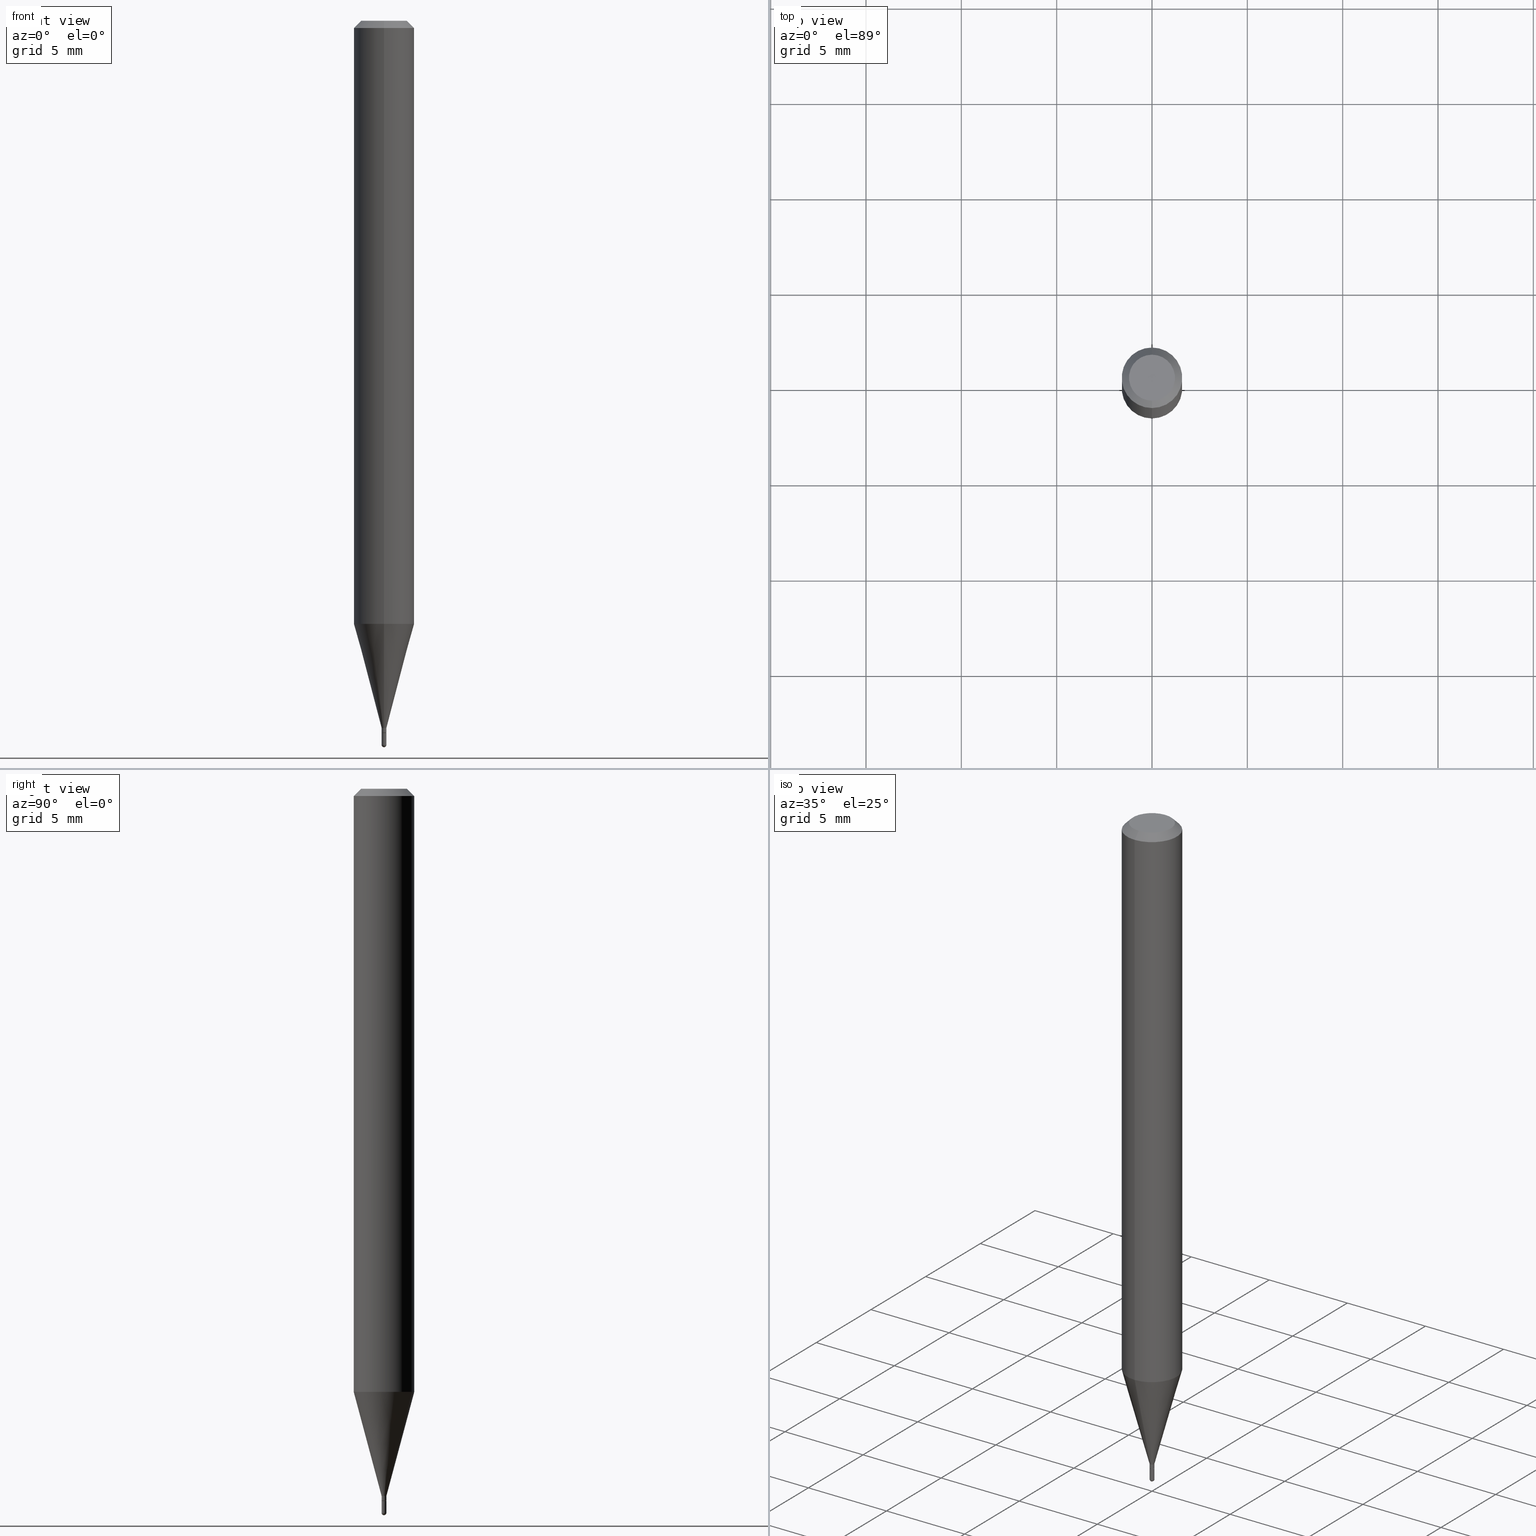
[diagram: canonical four-view strip — front | top / right | iso, engineering-drawing reading convention]
A machine part, canonical four-view strip (front | top / right | iso — engineering-drawing reading convention). The complete STEP part file that produces these views, byte-faithful:
ISO-10303-21;
HEADER;
FILE_DESCRIPTION (( 'STEP AP203' ),
    '1' );
FILE_NAME ('03145.STEP',
    '2024-03-08T18:20:06',
    ( '' ),
    ( '' ),
    'SwSTEP 2.0',
    'SolidWorks 2023',
    '' );
FILE_SCHEMA (( 'CONFIG_CONTROL_DESIGN' ));
ENDSEC;

DATA;
#1 = DIRECTION ( 'NONE',  ( -2.445665953977767409E-29, 3.491199011983142468E-15, 1.000000000000000000 ) ) ;
#2 = DIRECTION ( 'NONE',  ( -2.445665953977767409E-29, 3.491199011983142468E-15, 1.000000000000000000 ) ) ;
#3 = DIRECTION ( 'NONE',  ( -2.445665953977767409E-29, 3.491199011983142468E-15, 1.000000000000000000 ) ) ;
#4 = EDGE_CURVE ( 'NONE', #41, #503, #116, .T. ) ;
#5 = FACE_OUTER_BOUND ( 'NONE', #178, .T. ) ;
#6 = CARTESIAN_POINT ( 'NONE',  ( 3.668498930966592382E-31, -5.236798517974630846E-17, -0.01499999999999976179 ) ) ;
#7 = AXIS2_PLACEMENT_3D ( 'NONE', #147, #29, #269 ) ;
#8 =( NAMED_UNIT ( * ) PLANE_ANGLE_UNIT ( ) SI_UNIT ( $, .RADIAN. ) );
#9 = DIRECTION ( 'NONE',  ( -2.445665953977767409E-29, 3.491199011983142468E-15, 1.000000000000000000 ) ) ;
#10 = COORDINATED_UNIVERSAL_TIME_OFFSET ( 5, 0, .BEHIND. ) ;
#11 = ADVANCED_FACE ( 'NONE', ( #439 ), #441, .T. ) ;
#12 = CARTESIAN_POINT ( 'NONE',  ( 3.595128952347318276E-29, -5.132062547615219396E-15, -1.470000000000000195 ) ) ;
#13 = APPROVAL_ROLE ( '' ) ;
#14 = ORIENTED_EDGE ( 'NONE', *, *, #268, .T. ) ;
#15 = VECTOR ( 'NONE', #212, 39.37007874015748143 ) ;
#16 = CALENDAR_DATE ( 2024, 8, 3 ) ;
#17 = CIRCLE ( 'NONE', #477, 0.004999999999999906429 ) ;
#18 = EDGE_CURVE ( 'NONE', #265, #356, #402, .T. ) ;
#19 = PERSON_AND_ORGANIZATION ( #278, #271 ) ;
#20 = CARTESIAN_POINT ( 'NONE',  ( 0.005000000000000000104, -3.491481338843132862E-17, 2.438088387897967984E-31 ) ) ;
#21 = EDGE_CURVE ( 'NONE', #34, #389, #164, .T. ) ;
#22 = DIRECTION ( 'NONE',  ( -2.445468806185136877E-29, 3.491481338843145188E-15, 1.000000000000000000 ) ) ;
#23 = VERTEX_POINT ( 'NONE', #161 ) ;
#24 = LINE ( 'NONE', #339, #200 ) ;
#25 = CC_DESIGN_PERSON_AND_ORGANIZATION_ASSIGNMENT ( #334, #454, ( #32 ) ) ;
#26 = ORIENTED_EDGE ( 'NONE', *, *, #346, .T. ) ;
#27 = DIRECTION ( 'NONE',  ( -6.982962677686265922E-15, -1.000000000000000000, 3.491199011983142468E-15 ) ) ;
#28 = EDGE_LOOP ( 'NONE', ( #302, #38, #127, #225 ) ) ;
#29 = DIRECTION ( 'NONE',  ( -2.445665953977767409E-29, 3.491199011983142468E-15, 1.000000000000000000 ) ) ;
#30 = CIRCLE ( 'NONE', #332, 0.004999999999999906429 ) ;
#31 = ORIENTED_EDGE ( 'NONE', *, *, #45, .T. ) ;
#32 = SECURITY_CLASSIFICATION ( '', '', #491 ) ;
#33 = CARTESIAN_POINT ( 'NONE',  ( 3.570672292807540384E-29, -5.097150557495387435E-15, -1.459999999999999742 ) ) ;
#34 = VERTEX_POINT ( 'NONE', #320 ) ;
#35 = DIRECTION ( 'NONE',  ( -6.982962677686265133E-15, -1.000000000000000000, 3.491199011983142073E-15 ) ) ;
#36 = CARTESIAN_POINT ( 'NONE',  ( 3.668498930966592382E-31, -5.236798517974630846E-17, -0.01499999999999976179 ) ) ;
#37 = DIRECTION ( 'NONE',  ( -6.982962677686265922E-15, -1.000000000000000000, 3.491199011983142468E-15 ) ) ;
#38 = ORIENTED_EDGE ( 'NONE', *, *, #368, .T. ) ;
#39 = CARTESIAN_POINT ( 'NONE',  ( -3.491481338843080477E-17, -0.004999999999999925511, 1.745599505991545053E-17 ) ) ;
#40 = EDGE_LOOP ( 'NONE', ( #180, #449, #393, #467 ) ) ;
#41 = VERTEX_POINT ( 'NONE', #276 ) ;
#42 = DIRECTION ( 'NONE',  ( 1.000000000000000000, 0.000000000000000000, 0.000000000000000000 ) ) ;
#43 = CARTESIAN_POINT ( 'NONE',  ( 3.593906119370329494E-29, -5.130316948109228074E-15, -1.469500000000000250 ) ) ;
#44 = CIRCLE ( 'NONE', #404, 0.06250000000000000000 ) ;
#45 = EDGE_CURVE ( 'NONE', #356, #265, #327, .T. ) ;
#46 = PERSON_AND_ORGANIZATION_ROLE ( 'design_owner' ) ;
#47 = LINE ( 'NONE', #173, #282 ) ;
#48 = DIRECTION ( 'NONE',  ( 0.000000000000000000, 0.000000000000000000, 1.000000000000000000 ) ) ;
#49 = LINE ( 'NONE', #88, #443 ) ;
#50 = LENGTH_MEASURE_WITH_UNIT ( LENGTH_MEASURE( 0.02539999999999999897 ), #277 );
#51 = AXIS2_PLACEMENT_3D ( 'NONE', #313, #154, #239 ) ;
#52 = VECTOR ( 'NONE', #437, 39.37007874015748143 ) ;
#53 = PERSON_AND_ORGANIZATION_ROLE ( 'design_supplier' ) ;
#54 = ORIENTED_EDGE ( 'NONE', *, *, #150, .T. ) ;
#55 = ADVANCED_FACE ( 'NONE', ( #113 ), #123, .F. ) ;
#56 = CARTESIAN_POINT ( 'NONE',  ( 3.595128952347318276E-29, -5.132062547615219396E-15, -1.470000000000000195 ) ) ;
#57 = CARTESIAN_POINT ( 'NONE',  ( 3.594839145092150820E-29, -5.132477568099424807E-15, -1.470000000000000195 ) ) ;
#58 = CIRCLE ( 'NONE', #193, 0.004999999999999927246 ) ;
#59 = ORIENTED_EDGE ( 'NONE', *, *, #375, .F. ) ;
#60 = DIRECTION ( 'NONE',  ( -6.982962677686265133E-15, -1.000000000000000000, 0.000000000000000000 ) ) ;
#61 = ORIENTED_EDGE ( 'NONE', *, *, #183, .T. ) ;
#62 = LINE ( 'NONE', #149, #118 ) ;
#63 = ORIENTED_EDGE ( 'NONE', *, *, #434, .F. ) ;
#64 = EDGE_CURVE ( 'NONE', #389, #413, #85, .T. ) ;
#65 = LINE ( 'NONE', #74, #372 ) ;
#66 = AXIS2_PLACEMENT_3D ( 'NONE', #6, #279, #230 ) ;
#67 = ORIENTED_EDGE ( 'NONE', *, *, #71, .F. ) ;
#68 = ADVANCED_FACE ( 'NONE', ( #470 ), #293, .T. ) ;
#69 = DIRECTION ( 'NONE',  ( -2.445665953977767409E-29, 3.491199011983142468E-15, 1.000000000000000000 ) ) ;
#70 = VERTEX_POINT ( 'NONE', #396 ) ;
#71 = EDGE_CURVE ( 'NONE', #505, #497, #344, .T. ) ;
#72 = DIRECTION ( 'NONE',  ( -2.445468806185136597E-29, 3.491481338843145583E-15, 1.000000000000000000 ) ) ;
#73 = CARTESIAN_POINT ( 'NONE',  ( -3.142333204955224342E-17, -0.004500000000005131839, -1.470000000000000195 ) ) ;
#74 = CARTESIAN_POINT ( 'NONE',  ( 3.552713678804019446E-17, 0.004999999999994829761, -1.459999999999999742 ) ) ;
#75 = EDGE_CURVE ( 'NONE', #416, #446, #160, .T. ) ;
#76 = EDGE_LOOP ( 'NONE', ( #387, #424, #489, #59 ) ) ;
#77 = AXIS2_PLACEMENT_3D ( 'NONE', #331, #296, #27 ) ;
#78 = DIRECTION ( 'NONE',  ( -6.982962677686265133E-15, -1.000000000000000000, 0.000000000000000000 ) ) ;
#79 = APPROVAL_STATUS ( 'not_yet_approved' ) ;
#80 = ADVANCED_FACE ( 'NONE', ( #267 ), #411, .T. ) ;
#81 = CARTESIAN_POINT ( 'NONE',  ( 3.668498930966592382E-31, -5.236798517974630846E-17, -0.01499999999999976179 ) ) ;
#82 = EDGE_CURVE ( 'NONE', #446, #503, #438, .T. ) ;
#83 = DATE_AND_TIME ( #16, #272 ) ;
#84 = DIRECTION ( 'NONE',  ( 1.000000000000000000, -6.982962677686332186E-15, 0.000000000000000000 ) ) ;
#85 = CIRCLE ( 'NONE', #168, 0.004999999999999924644 ) ;
#86 = CIRCLE ( 'NONE', #364, 0.004999999999999927246 ) ;
#87 = CARTESIAN_POINT ( 'NONE',  ( -3.491481338839444321E-17, -0.005000000000005173049, -1.495000000000000329 ) ) ;
#88 = CARTESIAN_POINT ( 'NONE',  ( 4.364351673553919652E-16, 0.06249999999999995143, -0.01499999999999997863 ) ) ;
#89 =( CONVERSION_BASED_UNIT ( 'INCH', #50 ) LENGTH_UNIT ( ) NAMED_UNIT ( #340 ) );
#90 = EDGE_CURVE ( 'NONE', #450, #70, #386, .T. ) ;
#91 = AXIS2_PLACEMENT_3D ( 'NONE', #81, #1, #480 ) ;
#92 = AXIS2_PLACEMENT_3D ( 'NONE', #105, #390, #35 ) ;
#93 = DATE_AND_TIME ( #138, #380 ) ;
#94 = CARTESIAN_POINT ( 'NONE',  ( 2.398081733190667635E-16, 0.004999999999994829761, -1.459999999999999742 ) ) ;
#95 = EDGE_CURVE ( 'NONE', #413, #389, #174, .T. ) ;
#96 = ORIENTED_EDGE ( 'NONE', *, *, #136, .T. ) ;
#97 = FACE_OUTER_BOUND ( 'NONE', #148, .T. ) ;
#98 = AXIS2_PLACEMENT_3D ( 'NONE', #362, #48, #42 ) ;
#99 = ORIENTED_EDGE ( 'NONE', *, *, #90, .F. ) ;
#100 = CARTESIAN_POINT ( 'NONE',  ( -0.005000000000000000104, -5.140593948046958933E-15, -1.495000000000000329 ) ) ;
#101 = ORIENTED_EDGE ( 'NONE', *, *, #136, .F. ) ;
#102 = DIRECTION ( 'NONE',  ( 1.839019923739600710E-15, 0.2588190451025250138, 0.9659258262890670910 ) ) ;
#103 = EDGE_CURVE ( 'NONE', #436, #70, #47, .T. ) ;
#104 = EDGE_LOOP ( 'NONE', ( #182, #499, #492, #67 ) ) ;
#105 = CARTESIAN_POINT ( 'NONE',  ( 0.000000000000000000, 0.000000000000000000, 0.000000000000000000 ) ) ;
#106 = CIRCLE ( 'NONE', #186, 0.005000000000000000104 ) ;
#107 = LOCAL_TIME ( 13, 20, 6.000000000000000000, #256 ) ;
#108 = ORIENTED_EDGE ( 'NONE', *, *, #308, .F. ) ;
#109 = DIRECTION ( 'NONE',  ( -6.982962677686265922E-15, -1.000000000000000000, 3.483106191921935554E-15 ) ) ;
#110 = CARTESIAN_POINT ( 'NONE',  ( 3.045849690888821220E-29, -4.347963962202206812E-15, -1.245407078564789716 ) ) ;
#111 = EDGE_CURVE ( 'NONE', #23, #446, #369, .T. ) ;
#112 = CARTESIAN_POINT ( 'NONE',  ( 3.197442310924045459E-17, 0.004499999999994868348, -1.470000000000000195 ) ) ;
#113 = FACE_OUTER_BOUND ( 'NONE', #249, .T. ) ;
#114 = MANIFOLD_SOLID_BREP ( 'Body-Move/Copy2[2]', #510 ) ;
#115 = CARTESIAN_POINT ( 'NONE',  ( 0.000000000000000000, 0.000000000000000000, 0.000000000000000000 ) ) ;
#116 = CIRCLE ( 'NONE', #91, 0.06250000000000000000 ) ;
#117 = DIRECTION ( 'NONE',  ( 1.000000000000000000, -6.982962677686265133E-15, 4.883557194083111780E-29 ) ) ;
#118 = VECTOR ( 'NONE', #219, 39.37007874015748143 ) ;
#119 = APPROVAL_PERSON_ORGANIZATION ( #247, #226, #297 ) ;
#120 = MECHANICAL_CONTEXT ( 'NONE', #287, 'mechanical' ) ;
#121 = ADVANCED_FACE ( 'NONE', ( #97 ), #242, .F. ) ;
#122 = DIRECTION ( 'NONE',  ( -6.982962677686266711E-15, -1.000000000000000000, 3.491199011983143651E-15 ) ) ;
#123 = PLANE ( 'NONE',  #51 ) ;
#124 = ADVANCED_FACE ( 'NONE', ( #445 ), #383, .T. ) ;
#125 = CARTESIAN_POINT ( 'NONE',  ( 3.655975865246779683E-29, -5.219764601570503930E-15, -1.495000000000000329 ) ) ;
#126 = EDGE_CURVE ( 'NONE', #265, #41, #49, .T. ) ;
#127 = ORIENTED_EDGE ( 'NONE', *, *, #172, .F. ) ;
#128 = CIRCLE ( 'NONE', #162, 0.005000000000000000104 ) ;
#129 = CC_DESIGN_APPROVAL ( #336, ( #280 ) ) ;
#130 = COORDINATED_UNIVERSAL_TIME_OFFSET ( 5, 0, .BEHIND. ) ;
#131 = ORIENTED_EDGE ( 'NONE', *, *, #4, .F. ) ;
#132 = CALENDAR_DATE ( 2024, 8, 3 ) ;
#133 = EDGE_LOOP ( 'NONE', ( #309, #464, #255, #216 ) ) ;
#134 = LOCAL_TIME ( 13, 20, 6.000000000000000000, #370 ) ;
#135 = DIRECTION ( 'NONE',  ( 1.000000000000000000, -6.982962677686332186E-15, 0.000000000000000000 ) ) ;
#136 = EDGE_CURVE ( 'NONE', #70, #450, #353, .T. ) ;
#137 = PRODUCT_RELATED_PRODUCT_CATEGORY ( 'detail', '', ( #246 ) ) ;
#138 = CALENDAR_DATE ( 2024, 8, 3 ) ;
#139 = DIRECTION ( 'NONE',  ( 1.000000000000000000, -6.982962677686332186E-15, 0.000000000000000000 ) ) ;
#140 = ORIENTED_EDGE ( 'NONE', *, *, #346, .F. ) ;
#141 = DIRECTION ( 'NONE',  ( -2.445468806185136597E-29, 3.491481338843145583E-15, 1.000000000000000000 ) ) ;
#142 = EDGE_LOOP ( 'NONE', ( #220, #61, #195, #460 ) ) ;
#143 = AXIS2_PLACEMENT_3D ( 'NONE', #158, #318, #122 ) ;
#144 = DIRECTION ( 'NONE',  ( 1.000000000000000000, -6.982962677686265133E-15, 4.883557194083111780E-29 ) ) ;
#145 = AXIS2_PLACEMENT_3D ( 'NONE', #229, #395, #317 ) ;
#146 = ORIENTED_EDGE ( 'NONE', *, *, #75, .T. ) ;
#147 = CARTESIAN_POINT ( 'NONE',  ( 3.570672292807540384E-29, -5.097150557495387435E-15, -1.459999999999999742 ) ) ;
#148 = EDGE_LOOP ( 'NONE', ( #63, #427 ) ) ;
#149 = CARTESIAN_POINT ( 'NONE',  ( -4.287811248607203282E-16, -0.06250000000000005551, -0.01499999999999954321 ) ) ;
#150 = EDGE_CURVE ( 'NONE', #497, #450, #206, .T. ) ;
#151 = ORIENTED_EDGE ( 'NONE', *, *, #209, .T. ) ;
#152 = DIRECTION ( 'NONE',  ( -2.445468806185136597E-29, 3.491481338843145583E-15, 1.000000000000000000 ) ) ;
#153 = CONICAL_SURFACE ( 'NONE', #7, 0.004999999999999927246, 0.2617993877991502960 ) ;
#154 = DIRECTION ( 'NONE',  ( 2.445665953977767409E-29, -3.491199011983142468E-15, -1.000000000000000000 ) ) ;
#155 = DIRECTION ( 'NONE',  ( 1.000000000000000000, -6.982962677686265922E-15, 4.876176775795935793E-29 ) ) ;
#156 = DIRECTION ( 'NONE',  ( -6.982962677686265133E-15, -1.000000000000000000, 0.000000000000000000 ) ) ;
#157 = CARTESIAN_POINT ( 'NONE',  ( 3.667561834560820214E-29, -5.238140493364078659E-15, -1.499999999999999778 ) ) ;
#158 = CARTESIAN_POINT ( 'NONE',  ( -5.856764221196150248E-45, 8.360556939185363712E-31, 2.394752321620367719E-16 ) ) ;
#159 = APPLICATION_PROTOCOL_DEFINITION ( 'international standard', 'config_control_design', 1994, #323 ) ;
#160 = CIRCLE ( 'NONE', #377, 0.06250000000000000000 ) ;
#161 = CARTESIAN_POINT ( 'NONE',  ( -3.491481338839511498E-17, -0.005000000000005024731, -1.459999999999999742 ) ) ;
#162 = AXIS2_PLACEMENT_3D ( 'NONE', #125, #141, #139 ) ;
#163 = ADVANCED_FACE ( 'NONE', ( #408 ), #166, .T. ) ;
#164 = LINE ( 'NONE', #73, #466 ) ;
#165 = PERSON_AND_ORGANIZATION ( #278, #271 ) ;
#166 = CYLINDRICAL_SURFACE ( 'NONE', #77, 0.06250000000000000000 ) ;
#167 = CALENDAR_DATE ( 2024, 8, 3 ) ;
#168 = AXIS2_PLACEMENT_3D ( 'NONE', #43, #322, #78 ) ;
#169 = ORIENTED_EDGE ( 'NONE', *, *, #426, .F. ) ;
#170 = AXIS2_PLACEMENT_3D ( 'NONE', #453, #298, #381 ) ;
#171 = DIRECTION ( 'NONE',  ( -2.445665953977767409E-29, 3.491199011983142468E-15, 1.000000000000000000 ) ) ;
#172 = EDGE_CURVE ( 'NONE', #446, #416, #44, .T. ) ;
#173 = CARTESIAN_POINT ( 'NONE',  ( -0.005000000000000000104, 3.552713678800501003E-17, -2.459467545127453136E-31 ) ) ;
#174 = CIRCLE ( 'NONE', #221, 0.004999999999999924644 ) ;
#175 = AXIS2_PLACEMENT_3D ( 'NONE', #266, #349, #435 ) ;
#176 = DATE_TIME_ROLE ( 'classification_date' ) ;
#177 = CARTESIAN_POINT ( 'NONE',  ( 4.440892098500625669E-16, 0.06250000000000000000, -2.181999382489464042E-16 ) ) ;
#178 = EDGE_LOOP ( 'NONE', ( #508, #96 ) ) ;
#179 = CARTESIAN_POINT ( 'NONE',  ( 3.045849690888821220E-29, -4.347963962202206812E-15, -1.245407078564789716 ) ) ;
#180 = ORIENTED_EDGE ( 'NONE', *, *, #368, .F. ) ;
#181 = DIRECTION ( 'NONE',  ( 4.937700262164548042E-15, 0.7071067811865451302, -0.7071067811865499042 ) ) ;
#182 = ORIENTED_EDGE ( 'NONE', *, *, #374, .F. ) ;
#183 = EDGE_CURVE ( 'NONE', #416, #41, #419, .T. ) ;
#184 = AXIS2_PLACEMENT_3D ( 'NONE', #36, #270, #234 ) ;
#185 = FACE_OUTER_BOUND ( 'NONE', #210, .T. ) ;
#186 = AXIS2_PLACEMENT_3D ( 'NONE', #512, #152, #312 ) ;
#187 = ORIENTED_EDGE ( 'NONE', *, *, #434, .T. ) ;
#188 = DIRECTION ( 'NONE',  ( -2.445665953977767409E-29, 3.491199011983142468E-15, 1.000000000000000000 ) ) ;
#189 = ORIENTED_EDGE ( 'NONE', *, *, #4, .T. ) ;
#190 = CYLINDRICAL_SURFACE ( 'NONE', #502, 0.005000000000000000104 ) ;
#191 = CARTESIAN_POINT ( 'NONE',  ( 3.594839145092150820E-29, -5.132477568099424807E-15, -1.470000000000000195 ) ) ;
#192 = CARTESIAN_POINT ( 'NONE',  ( 3.552713678804029923E-17, 0.004999999999994777719, -1.469500000000000250 ) ) ;
#193 = AXIS2_PLACEMENT_3D ( 'NONE', #33, #69, #463 ) ;
#194 = CC_DESIGN_APPROVAL ( #226, ( #32 ) ) ;
#195 = ORIENTED_EDGE ( 'NONE', *, *, #399, .F. ) ;
#196 = DIRECTION ( 'NONE',  ( 5.024295867788187819E-15, 0.7071067811865676678, 0.7071067811865273667 ) ) ;
#197 = CARTESIAN_POINT ( 'NONE',  ( 3.655548282102189708E-29, -5.220376924970077322E-15, -1.495000000000000107 ) ) ;
#198 = EDGE_CURVE ( 'NONE', #311, #436, #128, .T. ) ;
#199 = DIRECTION ( 'NONE',  ( -2.445665953977767129E-29, 3.491199011983142468E-15, 1.000000000000000000 ) ) ;
#200 = VECTOR ( 'NONE', #498, 39.37007874015748143 ) ;
#201 = ORIENTED_EDGE ( 'NONE', *, *, #71, .T. ) ;
#202 = ADVANCED_FACE ( 'NONE', ( #455 ), #342, .T. ) ;
#203 = DIRECTION ( 'NONE',  ( -2.445468806185136597E-29, 3.491481338843145583E-15, 1.000000000000000000 ) ) ;
#204 = PLANE ( 'NONE',  #222 ) ;
#205 = CC_DESIGN_PERSON_AND_ORGANIZATION_ASSIGNMENT ( #319, #403, ( #280 ) ) ;
#206 = LINE ( 'NONE', #20, #283 ) ;
#207 = APPROVAL_ROLE ( '' ) ;
#208 = AXIS2_PLACEMENT_3D ( 'NONE', #447, #444, #481 ) ;
#209 = EDGE_CURVE ( 'NONE', #258, #34, #263, .T. ) ;
#210 = EDGE_LOOP ( 'NONE', ( #251, #299, #99, #295, #490 ) ) ;
#211 = SHAPE_DEFINITION_REPRESENTATION ( #238, #373 ) ;
#212 = DIRECTION ( 'NONE',  ( -1.807323732225330534E-15, -0.2588190451025182415, 0.9659258262890689783 ) ) ;
#213 = AXIS2_PLACEMENT_3D ( 'NONE', #406, #203, #252 ) ;
#214 = ADVANCED_FACE ( 'NONE', ( #501 ), #459, .T. ) ;
#215 = DIRECTION ( 'NONE',  ( -2.445468806185136597E-29, 3.491481338843145583E-15, 1.000000000000000000 ) ) ;
#216 = ORIENTED_EDGE ( 'NONE', *, *, #126, .F. ) ;
#217 = CARTESIAN_POINT ( 'NONE',  ( 3.375077994864043546E-17, 0.004499999999994868348, -1.470000000000000195 ) ) ;
#218 = EDGE_LOOP ( 'NONE', ( #329, #422, #201, #54, #101 ) ) ;
#219 = DIRECTION ( 'NONE',  ( -4.851104656540964275E-15, -0.7071067811865500152, -0.7071067811865450192 ) ) ;
#220 = ORIENTED_EDGE ( 'NONE', *, *, #172, .T. ) ;
#221 = AXIS2_PLACEMENT_3D ( 'NONE', #511, #461, #420 ) ;
#222 = AXIS2_PLACEMENT_3D ( 'NONE', #474, #440, #367 ) ;
#223 = DIRECTION ( 'NONE',  ( -6.982962677686265922E-15, -1.000000000000000000, 0.000000000000000000 ) ) ;
#224 = CONICAL_SURFACE ( 'NONE', #208, 0.004500000000000000527, 0.7853981633974733700 ) ;
#225 = ORIENTED_EDGE ( 'NONE', *, *, #111, .F. ) ;
#226 = APPROVAL ( #250, 'UNSPECIFIED' ) ;
#227 = CYLINDRICAL_SURFACE ( 'NONE', #488, 0.06250000000000000000 ) ;
#228 = ORIENTED_EDGE ( 'NONE', *, *, #18, .T. ) ;
#229 = CARTESIAN_POINT ( 'NONE',  ( 3.595128952347318276E-29, -5.132062547615219396E-15, -1.470000000000000195 ) ) ;
#230 = DIRECTION ( 'NONE',  ( 6.982962677686265922E-15, 1.000000000000000000, -3.483106191921935554E-15 ) ) ;
#231 = DIRECTION ( 'NONE',  ( -6.982962677686264344E-15, -1.000000000000000000, 0.000000000000000000 ) ) ;
#232 = AXIS2_PLACEMENT_3D ( 'NONE', #473, #442, #84 ) ;
#233 = AXIS2_PLACEMENT_3D ( 'NONE', #56, #305, #254 ) ;
#234 = DIRECTION ( 'NONE',  ( 6.982962677686265922E-15, 1.000000000000000000, -3.483106191921935554E-15 ) ) ;
#235 = DIRECTION ( 'NONE',  ( -6.982962677686265133E-15, -1.000000000000000000, 3.491199011983142073E-15 ) ) ;
#236 = DIRECTION ( 'NONE',  ( -6.982962677686266711E-15, -1.000000000000000000, 3.491199011983143651E-15 ) ) ;
#237 =( NAMED_UNIT ( * ) SI_UNIT ( $, .STERADIAN. ) SOLID_ANGLE_UNIT ( ) );
#238 = PRODUCT_DEFINITION_SHAPE ( 'NONE', 'NONE',  #280 ) ;
#239 = DIRECTION ( 'NONE',  ( 6.982962677686265922E-15, 1.000000000000000000, -3.491199011983142468E-15 ) ) ;
#240 = PERSON_AND_ORGANIZATION ( #278, #271 ) ;
#241 = CIRCLE ( 'NONE', #145, 0.004500000000000000527 ) ;
#242 = PLANE ( 'NONE',  #361 ) ;
#243 = LOCAL_TIME ( 13, 20, 6.000000000000000000, #338 ) ;
#244 = PERSON_AND_ORGANIZATION ( #278, #271 ) ;
#245 = DIRECTION ( 'NONE',  ( -6.982962677686265922E-15, -1.000000000000000000, 3.491199011983142468E-15 ) ) ;
#246 = PRODUCT ( '03145', '03145', '', ( #120 ) ) ;
#247 = PERSON_AND_ORGANIZATION ( #278, #271 ) ;
#248 = AXIS2_PLACEMENT_3D ( 'NONE', #400, #9, #236 ) ;
#249 = EDGE_LOOP ( 'NONE', ( #228, #31 ) ) ;
#250 = APPROVAL_STATUS ( 'not_yet_approved' ) ;
#251 = ORIENTED_EDGE ( 'NONE', *, *, #198, .T. ) ;
#252 = DIRECTION ( 'NONE',  ( 1.000000000000000000, -6.982962677686265922E-15, 4.876176775795935793E-29 ) ) ;
#253 = DATE_AND_TIME ( #132, #107 ) ;
#254 = DIRECTION ( 'NONE',  ( -6.982962677686265133E-15, -1.000000000000000000, 0.000000000000000000 ) ) ;
#255 = ORIENTED_EDGE ( 'NONE', *, *, #399, .T. ) ;
#256 = COORDINATED_UNIVERSAL_TIME_OFFSET ( 5, 0, .BEHIND. ) ;
#257 = DIRECTION ( 'NONE',  ( -6.982962677686265922E-15, -1.000000000000000000, 4.370956789862821150E-15 ) ) ;
#258 = VERTEX_POINT ( 'NONE', #217 ) ;
#259 = CARTESIAN_POINT ( 'NONE',  ( -4.364351673553611504E-16, -0.06250000000000434375, -1.245407078564789494 ) ) ;
#260 = VERTEX_POINT ( 'NONE', #94 ) ;
#261 = DIRECTION ( 'NONE',  ( 1.000000000000000000, -6.982962677686332186E-15, 0.000000000000000000 ) ) ;
#262 = ORIENTED_EDGE ( 'NONE', *, *, #374, .T. ) ;
#263 = CIRCLE ( 'NONE', #170, 0.004500000000000000527 ) ;
#264 = FACE_OUTER_BOUND ( 'NONE', #28, .T. ) ;
#265 = VERTEX_POINT ( 'NONE', #366 ) ;
#266 = CARTESIAN_POINT ( 'NONE',  ( 3.570672292807540384E-29, -5.097150557495387435E-15, -1.459999999999999742 ) ) ;
#267 = FACE_OUTER_BOUND ( 'NONE', #391, .T. ) ;
#268 = EDGE_CURVE ( 'NONE', #413, #260, #24, .T. ) ;
#269 = DIRECTION ( 'NONE',  ( -6.982962677686265922E-15, -1.000000000000000000, 0.000000000000000000 ) ) ;
#270 = DIRECTION ( 'NONE',  ( 2.445665953977767409E-29, -3.491199011983142468E-15, -1.000000000000000000 ) ) ;
#271 = ORGANIZATION ( 'UNSPECIFIED', 'UNSPECIFIED', '' ) ;
#272 = LOCAL_TIME ( 13, 20, 6.000000000000000000, #10 ) ;
#273 = ORIENTED_EDGE ( 'NONE', *, *, #183, .F. ) ;
#274 = DESIGN_CONTEXT ( 'detailed design', #323, 'design' ) ;
#275 = CARTESIAN_POINT ( 'NONE',  ( 0.005000000000000000104, -5.211035898223395623E-15, -1.495000000000000329 ) ) ;
#276 = CARTESIAN_POINT ( 'NONE',  ( 4.440892098500932831E-16, 0.06249999999999995143, -0.01499999999999997863 ) ) ;
#277 =( LENGTH_UNIT ( ) NAMED_UNIT ( * ) SI_UNIT ( $, .METRE. ) );
#278 = PERSON ( 'UNSPECIFIED', 'UNSPECIFIED', 'UNSPECIFIED', ('UNSPECIFIED'), ('UNSPECIFIED'), ('UNSPECIFIED') ) ;
#279 = DIRECTION ( 'NONE',  ( 2.445665953977767409E-29, -3.491199011983142468E-15, -1.000000000000000000 ) ) ;
#280 = PRODUCT_DEFINITION ( 'UNKNOWN', '', #285, #274 ) ;
#281 = APPROVAL_STATUS ( 'not_yet_approved' ) ;
#282 = VECTOR ( 'NONE', #284, 39.37007874015748143 ) ;
#283 = VECTOR ( 'NONE', #22, 39.37007874015748143 ) ;
#284 = DIRECTION ( 'NONE',  ( -2.445468806185136877E-29, 3.491481338843145188E-15, 1.000000000000000000 ) ) ;
#285 = PRODUCT_DEFINITION_FORMATION_WITH_SPECIFIED_SOURCE ( 'ANY', '', #246, .NOT_KNOWN. ) ;
#286 = ORIENTED_EDGE ( 'NONE', *, *, #64, .F. ) ;
#287 = APPLICATION_CONTEXT ( 'configuration controlled 3d designs of mechanical parts and assemblies' ) ;
#288 = DATE_AND_TIME ( #167, #134 ) ;
#289 = ORIENTED_EDGE ( 'NONE', *, *, #18, .F. ) ;
#290 = MANIFOLD_SOLID_BREP ( 'Body-Move/Copy2[1]', #487 ) ;
#291 = APPROVAL_DATE_TIME ( #253, #226 ) ;
#292 = PERSON_AND_ORGANIZATION ( #278, #271 ) ;
#293 = CONICAL_SURFACE ( 'NONE', #66, 0.06250000000000000000, 0.7853981633974483900 ) ;
#294 = APPROVAL_PERSON_ORGANIZATION ( #244, #336, #207 ) ;
#295 = ORIENTED_EDGE ( 'NONE', *, *, #150, .F. ) ;
#296 = DIRECTION ( 'NONE',  ( -2.445665953977767409E-29, 3.491199011983142468E-15, 1.000000000000000000 ) ) ;
#297 = APPROVAL_ROLE ( '' ) ;
#298 = DIRECTION ( 'NONE',  ( -2.445665953977767409E-29, 3.491199011983142468E-15, 1.000000000000000000 ) ) ;
#299 = ORIENTED_EDGE ( 'NONE', *, *, #103, .T. ) ;
#300 = EDGE_CURVE ( 'NONE', #382, #311, #17, .T. ) ;
#301 = DIRECTION ( 'NONE',  ( 7.105427357600999492E-15, 1.000000000000000000, 0.000000000000000000 ) ) ;
#302 = ORIENTED_EDGE ( 'NONE', *, *, #426, .T. ) ;
#303 = CONICAL_SURFACE ( 'NONE', #175, 0.004999999999999927246, 0.2617993877991502960 ) ;
#304 = CC_DESIGN_APPROVAL ( #316, ( #285 ) ) ;
#305 = DIRECTION ( 'NONE',  ( -2.445665953977767409E-29, 3.491199011983142468E-15, 1.000000000000000000 ) ) ;
#306 = ORIENTED_EDGE ( 'NONE', *, *, #198, .F. ) ;
#307 = LINE ( 'NONE', #39, #52 ) ;
#308 = EDGE_CURVE ( 'NONE', #436, #505, #468, .T. ) ;
#309 = ORIENTED_EDGE ( 'NONE', *, *, #45, .F. ) ;
#310 = FACE_OUTER_BOUND ( 'NONE', #40, .T. ) ;
#311 = VERTEX_POINT ( 'NONE', #472 ) ;
#312 = DIRECTION ( 'NONE',  ( 1.000000000000000000, -6.982962677686332186E-15, 0.000000000000000000 ) ) ;
#313 = CARTESIAN_POINT ( 'NONE',  ( 3.316907271900976096E-16, 0.04749999999999999362, -4.609433698818087166E-17 ) ) ;
#314 = DIRECTION ( 'NONE',  ( -1.000000000000000000, 6.982962677686265922E-15, -4.883557194083112340E-29 ) ) ;
#315 = EDGE_LOOP ( 'NONE', ( #348, #14, #169, #429 ) ) ;
#316 = APPROVAL ( #281, 'UNSPECIFIED' ) ;
#317 = DIRECTION ( 'NONE',  ( -6.982962677686265133E-15, -1.000000000000000000, 0.000000000000000000 ) ) ;
#318 = DIRECTION ( 'NONE',  ( -2.445665953977767409E-29, 3.491199011983142468E-15, 1.000000000000000000 ) ) ;
#319 = PERSON_AND_ORGANIZATION ( #278, #271 ) ;
#320 = CARTESIAN_POINT ( 'NONE',  ( -3.142333204955224342E-17, -0.004500000000005131839, -1.470000000000000195 ) ) ;
#321 = CC_DESIGN_DATE_AND_TIME_ASSIGNMENT ( #414, #176, ( #32 ) ) ;
#322 = DIRECTION ( 'NONE',  ( -2.445665953977767409E-29, 3.491199011983142468E-15, 1.000000000000000000 ) ) ;
#323 = APPLICATION_CONTEXT ( 'configuration controlled 3d designs of mechanical parts and assemblies' ) ;
#324 = CYLINDRICAL_SURFACE ( 'NONE', #354, 0.004999999999999925511 ) ;
#325 = CARTESIAN_POINT ( 'NONE',  ( -3.491481338839511498E-17, -0.005000000000005024731, -1.459999999999999742 ) ) ;
#326 = APPROVAL_DATE_TIME ( #288, #336 ) ;
#327 = CIRCLE ( 'NONE', #143, 0.04749999999999999362 ) ;
#328 =( GEOMETRIC_REPRESENTATION_CONTEXT ( 3 ) GLOBAL_UNCERTAINTY_ASSIGNED_CONTEXT ( ( #433 ) ) GLOBAL_UNIT_ASSIGNED_CONTEXT ( ( #89, #8, #237 ) ) REPRESENTATION_CONTEXT ( 'NONE', 'WORKASPACE' ) );
#329 = ORIENTED_EDGE ( 'NONE', *, *, #103, .F. ) ;
#330 = CC_DESIGN_PERSON_AND_ORGANIZATION_ASSIGNMENT ( #240, #46, ( #246 ) ) ;
#331 = CARTESIAN_POINT ( 'NONE',  ( 0.000000000000000000, 0.000000000000000000, 0.000000000000000000 ) ) ;
#332 = AXIS2_PLACEMENT_3D ( 'NONE', #358, #314, #231 ) ;
#333 = APPROVAL_PERSON_ORGANIZATION ( #165, #316, #13 ) ;
#334 = PERSON_AND_ORGANIZATION ( #278, #271 ) ;
#335 = DIRECTION ( 'NONE',  ( -2.445665953977767129E-29, 3.491199011983142468E-15, 1.000000000000000000 ) ) ;
#336 = APPROVAL ( #79, 'UNSPECIFIED' ) ;
#337 = ORIENTED_EDGE ( 'NONE', *, *, #300, .F. ) ;
#338 = COORDINATED_UNIVERSAL_TIME_OFFSET ( 5, 0, .BEHIND. ) ;
#339 = CARTESIAN_POINT ( 'NONE',  ( 3.552713678800447385E-17, 0.004999999999999925511, -1.745599505991545053E-17 ) ) ;
#340 = DIMENSIONAL_EXPONENTS ( 1.000000000000000000, 0.000000000000000000, 0.000000000000000000, 0.000000000000000000, 0.000000000000000000, 0.000000000000000000, 0.000000000000000000 ) ;
#341 = ORIENTED_EDGE ( 'NONE', *, *, #95, .F. ) ;
#342 = SPHERICAL_SURFACE ( 'NONE', #394, 0.004999999999999906429 ) ;
#343 = EDGE_LOOP ( 'NONE', ( #187, #26, #286, #350 ) ) ;
#344 = CIRCLE ( 'NONE', #232, 0.005000000000000000104 ) ;
#345 = AXIS2_PLACEMENT_3D ( 'NONE', #57, #215, #135 ) ;
#346 = EDGE_CURVE ( 'NONE', #258, #413, #509, .T. ) ;
#347 = DIRECTION ( 'NONE',  ( -2.445665953977767409E-29, 3.491199011983142468E-15, 1.000000000000000000 ) ) ;
#348 = ORIENTED_EDGE ( 'NONE', *, *, #64, .T. ) ;
#349 = DIRECTION ( 'NONE',  ( -2.445665953977767409E-29, 3.491199011983142468E-15, 1.000000000000000000 ) ) ;
#350 = ORIENTED_EDGE ( 'NONE', *, *, #21, .F. ) ;
#351 = CARTESIAN_POINT ( 'NONE',  ( 0.000000000000000000, 0.000000000000000000, 0.000000000000000000 ) ) ;
#352 = DIRECTION ( 'NONE',  ( 1.000000000000000000, -6.982962677686332186E-15, 0.000000000000000000 ) ) ;
#353 = CIRCLE ( 'NONE', #345, 0.005000000000000000104 ) ;
#354 = AXIS2_PLACEMENT_3D ( 'NONE', #115, #171, #235 ) ;
#355 = DIRECTION ( 'NONE',  ( -2.445468806185136597E-29, 3.491481338843145583E-15, 1.000000000000000000 ) ) ;
#356 = VERTEX_POINT ( 'NONE', #428 ) ;
#357 = ADVANCED_FACE ( 'NONE', ( #264 ), #153, .T. ) ;
#358 = CARTESIAN_POINT ( 'NONE',  ( 3.655548282102189708E-29, -5.220376924970077322E-15, -1.495000000000000107 ) ) ;
#359 = DIRECTION ( 'NONE',  ( -4.937700262164671104E-15, -0.7071067811865627828, 0.7071067811865322517 ) ) ;
#360 = DIRECTION ( 'NONE',  ( -2.445468806185136597E-29, 3.491481338843145583E-15, 1.000000000000000000 ) ) ;
#361 = AXIS2_PLACEMENT_3D ( 'NONE', #12, #493, #245 ) ;
#362 = CARTESIAN_POINT ( 'NONE',  ( 0.000000000000000000, 0.000000000000000000, 0.000000000000000000 ) ) ;
#363 = EDGE_CURVE ( 'NONE', #389, #23, #307, .T. ) ;
#364 = AXIS2_PLACEMENT_3D ( 'NONE', #469, #2, #223 ) ;
#365 = CARTESIAN_POINT ( 'NONE',  ( -4.364351673553912750E-16, -0.06250000000000005551, -0.01499999999999954321 ) ) ;
#366 = CARTESIAN_POINT ( 'NONE',  ( 3.840629472727447874E-16, 0.04749999999999999362, 7.364327909283752044E-17 ) ) ;
#367 = DIRECTION ( 'NONE',  ( -1.000000000000000000, 6.982962677686265922E-15, -4.876176775795935793E-29 ) ) ;
#368 = EDGE_CURVE ( 'NONE', #260, #416, #65, .T. ) ;
#369 = LINE ( 'NONE', #325, #15 ) ;
#370 = COORDINATED_UNIVERSAL_TIME_OFFSET ( 5, 0, .BEHIND. ) ;
#371 = AXIS2_PLACEMENT_3D ( 'NONE', #197, #117, #156 ) ;
#372 = VECTOR ( 'NONE', #102, 39.37007874015748143 ) ;
#373 = ADVANCED_BREP_SHAPE_REPRESENTATION ( '03145', ( #290, #114, #98 ), #328 ) ;
#374 = EDGE_CURVE ( 'NONE', #382, #505, #30, .T. ) ;
#375 = EDGE_CURVE ( 'NONE', #260, #23, #86, .T. ) ;
#376 = DIRECTION ( 'NONE',  ( -2.445665953977767409E-29, 3.491199011983142468E-15, 1.000000000000000000 ) ) ;
#377 = AXIS2_PLACEMENT_3D ( 'NONE', #110, #3, #398 ) ;
#378 = AXIS2_PLACEMENT_3D ( 'NONE', #423, #72, #261 ) ;
#379 = EDGE_LOOP ( 'NONE', ( #337, #262, #108, #306 ) ) ;
#380 = LOCAL_TIME ( 13, 20, 6.000000000000000000, #130 ) ;
#381 = DIRECTION ( 'NONE',  ( -6.982962677686265133E-15, -1.000000000000000000, 0.000000000000000000 ) ) ;
#382 = VERTEX_POINT ( 'NONE', #157 ) ;
#383 = CYLINDRICAL_SURFACE ( 'NONE', #213, 0.005000000000000000104 ) ;
#384 = ORIENTED_EDGE ( 'NONE', *, *, #126, .T. ) ;
#385 = CYLINDRICAL_SURFACE ( 'NONE', #92, 0.004999999999999925511 ) ;
#386 = CIRCLE ( 'NONE', #451, 0.005000000000000000104 ) ;
#387 = ORIENTED_EDGE ( 'NONE', *, *, #268, .F. ) ;
#388 = CARTESIAN_POINT ( 'NONE',  ( -3.491481338839497323E-17, -0.005000000000005070701, -1.469500000000000250 ) ) ;
#389 = VERTEX_POINT ( 'NONE', #388 ) ;
#390 = DIRECTION ( 'NONE',  ( -2.445665953977767409E-29, 3.491199011983142468E-15, 1.000000000000000000 ) ) ;
#391 = EDGE_LOOP ( 'NONE', ( #456, #289, #384, #189 ) ) ;
#392 = FACE_OUTER_BOUND ( 'NONE', #462, .T. ) ;
#393 = ORIENTED_EDGE ( 'NONE', *, *, #111, .T. ) ;
#394 = AXIS2_PLACEMENT_3D ( 'NONE', #496, #144, #60 ) ;
#395 = DIRECTION ( 'NONE',  ( -2.445665953977767409E-29, 3.491199011983142468E-15, 1.000000000000000000 ) ) ;
#396 = CARTESIAN_POINT ( 'NONE',  ( -0.005000000000000000104, -5.140593948046958933E-15, -1.470000000000000195 ) ) ;
#397 = FACE_OUTER_BOUND ( 'NONE', #432, .T. ) ;
#398 = DIRECTION ( 'NONE',  ( -6.982962677686265922E-15, -1.000000000000000000, 4.370956789862821150E-15 ) ) ;
#399 = EDGE_CURVE ( 'NONE', #503, #41, #430, .T. ) ;
#400 = CARTESIAN_POINT ( 'NONE',  ( -5.856764221196150248E-45, 8.360556939185363712E-31, 2.394752321620367719E-16 ) ) ;
#401 = CC_DESIGN_PERSON_AND_ORGANIZATION_ASSIGNMENT ( #19, #457, ( #285 ) ) ;
#402 = CIRCLE ( 'NONE', #248, 0.04749999999999999362 ) ;
#403 = PERSON_AND_ORGANIZATION_ROLE ( 'creator' ) ;
#404 = AXIS2_PLACEMENT_3D ( 'NONE', #179, #376, #257 ) ;
#405 = CC_DESIGN_SECURITY_CLASSIFICATION ( #32, ( #285 ) ) ;
#406 = CARTESIAN_POINT ( 'NONE',  ( 0.000000000000000000, 0.000000000000000000, 0.000000000000000000 ) ) ;
#407 = APPLICATION_PROTOCOL_DEFINITION ( 'international standard', 'config_control_design', 1994, #287 ) ;
#408 = FACE_OUTER_BOUND ( 'NONE', #142, .T. ) ;
#409 = FACE_OUTER_BOUND ( 'NONE', #76, .T. ) ;
#410 = EDGE_CURVE ( 'NONE', #497, #311, #106, .T. ) ;
#411 = CONICAL_SURFACE ( 'NONE', #184, 0.06250000000000000000, 0.7853981633974483900 ) ;
#412 = VECTOR ( 'NONE', #335, 39.37007874015748143 ) ;
#413 = VERTEX_POINT ( 'NONE', #192 ) ;
#414 = DATE_AND_TIME ( #495, #243 ) ;
#415 = ADVANCED_FACE ( 'NONE', ( #310 ), #303, .T. ) ;
#416 = VERTEX_POINT ( 'NONE', #504 ) ;
#417 = CC_DESIGN_PERSON_AND_ORGANIZATION_ASSIGNMENT ( #292, #53, ( #285 ) ) ;
#418 = APPROVAL_DATE_TIME ( #93, #316 ) ;
#419 = LINE ( 'NONE', #177, #412 ) ;
#420 = DIRECTION ( 'NONE',  ( -6.982962677686265133E-15, -1.000000000000000000, 0.000000000000000000 ) ) ;
#421 = VECTOR ( 'NONE', #196, 39.37007874015748143 ) ;
#422 = ORIENTED_EDGE ( 'NONE', *, *, #308, .T. ) ;
#423 = CARTESIAN_POINT ( 'NONE',  ( 3.655975865246779683E-29, -5.219764601570503930E-15, -1.495000000000000329 ) ) ;
#424 = ORIENTED_EDGE ( 'NONE', *, *, #95, .T. ) ;
#425 = CARTESIAN_POINT ( 'NONE',  ( 0.000000000000000000, 0.000000000000000000, 0.000000000000000000 ) ) ;
#426 = EDGE_CURVE ( 'NONE', #23, #260, #58, .T. ) ;
#427 = ORIENTED_EDGE ( 'NONE', *, *, #209, .F. ) ;
#428 = CARTESIAN_POINT ( 'NONE',  ( -3.773273898774340269E-16, -0.04749999999999999362, 4.053071852312360726E-16 ) ) ;
#429 = ORIENTED_EDGE ( 'NONE', *, *, #363, .F. ) ;
#430 = CIRCLE ( 'NONE', #452, 0.06250000000000000000 ) ;
#431 = CARTESIAN_POINT ( 'NONE',  ( 3.668498930966592382E-31, -5.236798517974630846E-17, -0.01499999999999976179 ) ) ;
#432 = EDGE_LOOP ( 'NONE', ( #140, #151, #486, #341 ) ) ;
#433 = UNCERTAINTY_MEASURE_WITH_UNIT (LENGTH_MEASURE( 1.000000000000000082E-05 ), #89, 'distance_accuracy_value', 'NONE');
#434 = EDGE_CURVE ( 'NONE', #34, #258, #241, .T. ) ;
#435 = DIRECTION ( 'NONE',  ( -6.982962677686265922E-15, -1.000000000000000000, 0.000000000000000000 ) ) ;
#436 = VERTEX_POINT ( 'NONE', #100 ) ;
#437 = DIRECTION ( 'NONE',  ( -2.445665953977767129E-29, 3.491199011983142468E-15, 1.000000000000000000 ) ) ;
#438 = LINE ( 'NONE', #475, #476 ) ;
#439 = FACE_OUTER_BOUND ( 'NONE', #104, .T. ) ;
#440 = DIRECTION ( 'NONE',  ( 2.438088387897960049E-29, -3.491481338843145188E-15, -1.000000000000000000 ) ) ;
#441 = SPHERICAL_SURFACE ( 'NONE', #371, 0.004999999999999906429 ) ;
#442 = DIRECTION ( 'NONE',  ( -2.445468806185136597E-29, 3.491481338843145583E-15, 1.000000000000000000 ) ) ;
#443 = VECTOR ( 'NONE', #181, 39.37007874015748143 ) ;
#444 = DIRECTION ( 'NONE',  ( -2.445665953977767409E-29, 3.491199011983142468E-15, 1.000000000000000000 ) ) ;
#445 = FACE_OUTER_BOUND ( 'NONE', #218, .T. ) ;
#446 = VERTEX_POINT ( 'NONE', #259 ) ;
#447 = CARTESIAN_POINT ( 'NONE',  ( 3.595128952347318276E-29, -5.132062547615219396E-15, -1.470000000000000195 ) ) ;
#448 = ADVANCED_FACE ( 'NONE', ( #392 ), #227, .T. ) ;
#449 = ORIENTED_EDGE ( 'NONE', *, *, #375, .T. ) ;
#450 = VERTEX_POINT ( 'NONE', #506 ) ;
#451 = AXIS2_PLACEMENT_3D ( 'NONE', #191, #360, #352 ) ;
#452 = AXIS2_PLACEMENT_3D ( 'NONE', #431, #347, #109 ) ;
#453 = CARTESIAN_POINT ( 'NONE',  ( 3.595128952347318276E-29, -5.132062547615219396E-15, -1.470000000000000195 ) ) ;
#454 = PERSON_AND_ORGANIZATION_ROLE ( 'classification_officer' ) ;
#455 = FACE_OUTER_BOUND ( 'NONE', #379, .T. ) ;
#456 = ORIENTED_EDGE ( 'NONE', *, *, #471, .F. ) ;
#457 = PERSON_AND_ORGANIZATION_ROLE ( 'creator' ) ;
#458 = CARTESIAN_POINT ( 'NONE',  ( 3.655548282102189708E-29, -5.220376924970077322E-15, -1.495000000000000107 ) ) ;
#459 = CONICAL_SURFACE ( 'NONE', #233, 0.004500000000000000527, 0.7853981633974733700 ) ;
#460 = ORIENTED_EDGE ( 'NONE', *, *, #82, .F. ) ;
#461 = DIRECTION ( 'NONE',  ( -2.445665953977767409E-29, 3.491199011983142468E-15, 1.000000000000000000 ) ) ;
#462 = EDGE_LOOP ( 'NONE', ( #273, #146, #483, #131 ) ) ;
#463 = DIRECTION ( 'NONE',  ( -6.982962677686265922E-15, -1.000000000000000000, 0.000000000000000000 ) ) ;
#464 = ORIENTED_EDGE ( 'NONE', *, *, #471, .T. ) ;
#465 = FACE_OUTER_BOUND ( 'NONE', #315, .T. ) ;
#466 = VECTOR ( 'NONE', #359, 39.37007874015748143 ) ;
#467 = ORIENTED_EDGE ( 'NONE', *, *, #75, .F. ) ;
#468 = CIRCLE ( 'NONE', #378, 0.005000000000000000104 ) ;
#469 = CARTESIAN_POINT ( 'NONE',  ( 3.570672292807540384E-29, -5.097150557495387435E-15, -1.459999999999999742 ) ) ;
#470 = FACE_OUTER_BOUND ( 'NONE', #133, .T. ) ;
#471 = EDGE_CURVE ( 'NONE', #356, #503, #62, .T. ) ;
#472 = CARTESIAN_POINT ( 'NONE',  ( 3.552713678804122368E-17, 0.004999999999994732616, -1.495000000000000329 ) ) ;
#473 = CARTESIAN_POINT ( 'NONE',  ( 3.655975865246779683E-29, -5.219764601570503930E-15, -1.495000000000000329 ) ) ;
#474 = CARTESIAN_POINT ( 'NONE',  ( 3.491481338846727726E-17, 0.004999999999994867057, -1.470000000000000195 ) ) ;
#475 = CARTESIAN_POINT ( 'NONE',  ( -4.364351673553916201E-16, -0.06250000000000000000, 2.181999382489464042E-16 ) ) ;
#476 = VECTOR ( 'NONE', #199, 39.37007874015748143 ) ;
#477 = AXIS2_PLACEMENT_3D ( 'NONE', #458, #484, #301 ) ;
#478 = DATE_TIME_ROLE ( 'creation_date' ) ;
#479 = ADVANCED_FACE ( 'NONE', ( #465 ), #385, .T. ) ;
#480 = DIRECTION ( 'NONE',  ( -6.982962677686265922E-15, -1.000000000000000000, 3.483106191921935554E-15 ) ) ;
#481 = DIRECTION ( 'NONE',  ( -6.982962677686265133E-15, -1.000000000000000000, 0.000000000000000000 ) ) ;
#482 = ADVANCED_FACE ( 'NONE', ( #185 ), #190, .T. ) ;
#483 = ORIENTED_EDGE ( 'NONE', *, *, #82, .T. ) ;
#484 = DIRECTION ( 'NONE',  ( 1.000000000000000000, -7.105427357601001070E-15, 4.926315508542082329E-29 ) ) ;
#485 = CC_DESIGN_DATE_AND_TIME_ASSIGNMENT ( #83, #478, ( #280 ) ) ;
#486 = ORIENTED_EDGE ( 'NONE', *, *, #21, .T. ) ;
#487 = CLOSED_SHELL ( 'NONE', ( #482, #11, #507, #202, #124 ) ) ;
#488 = AXIS2_PLACEMENT_3D ( 'NONE', #425, #188, #37 ) ;
#489 = ORIENTED_EDGE ( 'NONE', *, *, #363, .T. ) ;
#490 = ORIENTED_EDGE ( 'NONE', *, *, #410, .T. ) ;
#491 = SECURITY_CLASSIFICATION_LEVEL ( 'unclassified' ) ;
#492 = ORIENTED_EDGE ( 'NONE', *, *, #410, .F. ) ;
#493 = DIRECTION ( 'NONE',  ( -2.445665953977767409E-29, 3.491199011983142468E-15, 1.000000000000000000 ) ) ;
#494 = ADVANCED_FACE ( 'NONE', ( #409 ), #324, .T. ) ;
#495 = CALENDAR_DATE ( 2024, 8, 3 ) ;
#496 = CARTESIAN_POINT ( 'NONE',  ( 3.655548282102189708E-29, -5.220376924970077322E-15, -1.495000000000000107 ) ) ;
#497 = VERTEX_POINT ( 'NONE', #275 ) ;
#498 = DIRECTION ( 'NONE',  ( -2.445665953977767129E-29, 3.491199011983142468E-15, 1.000000000000000000 ) ) ;
#499 = ORIENTED_EDGE ( 'NONE', *, *, #300, .T. ) ;
#500 = ADVANCED_FACE ( 'NONE', ( #397 ), #224, .T. ) ;
#501 = FACE_OUTER_BOUND ( 'NONE', #343, .T. ) ;
#502 = AXIS2_PLACEMENT_3D ( 'NONE', #351, #355, #155 ) ;
#503 = VERTEX_POINT ( 'NONE', #365 ) ;
#504 = CARTESIAN_POINT ( 'NONE',  ( 4.440892098500927901E-16, 0.06249999999999563544, -1.245407078564790160 ) ) ;
#505 = VERTEX_POINT ( 'NONE', #87 ) ;
#506 = CARTESIAN_POINT ( 'NONE',  ( 0.005000000000000000104, -5.167392381487856456E-15, -1.470000000000000195 ) ) ;
#507 = ADVANCED_FACE ( 'NONE', ( #5 ), #204, .F. ) ;
#508 = ORIENTED_EDGE ( 'NONE', *, *, #90, .T. ) ;
#509 = LINE ( 'NONE', #112, #421 ) ;
#510 = CLOSED_SHELL ( 'NONE', ( #479, #214, #68, #163, #357, #415, #448, #80, #55, #121, #500, #494 ) ) ;
#511 = CARTESIAN_POINT ( 'NONE',  ( 3.593906119370329494E-29, -5.130316948109228074E-15, -1.469500000000000250 ) ) ;
#512 = CARTESIAN_POINT ( 'NONE',  ( 3.655975865246779683E-29, -5.219764601570503930E-15, -1.495000000000000329 ) ) ;
ENDSEC;
END-ISO-10303-21;
